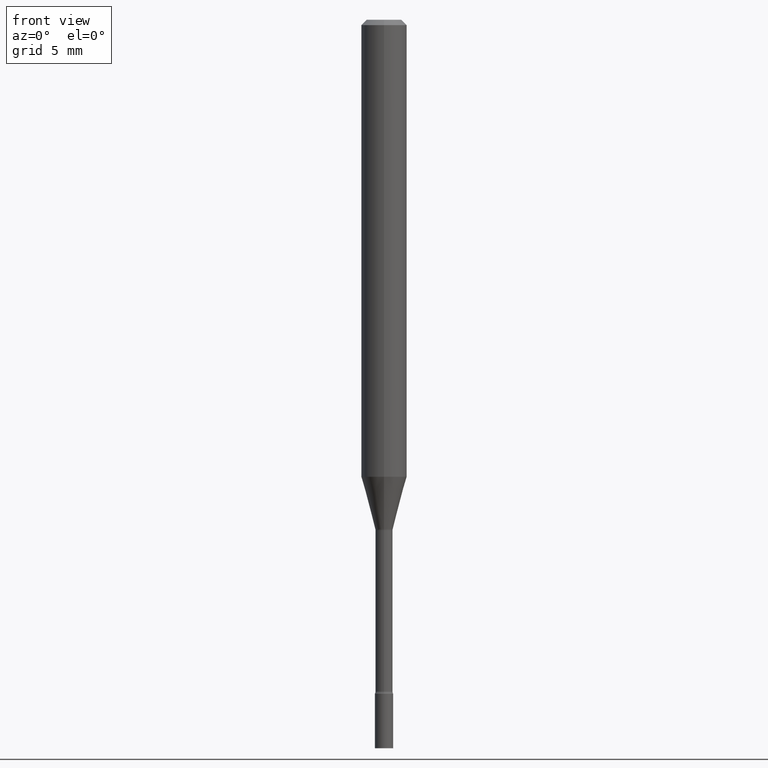
[diagram: clean part render]
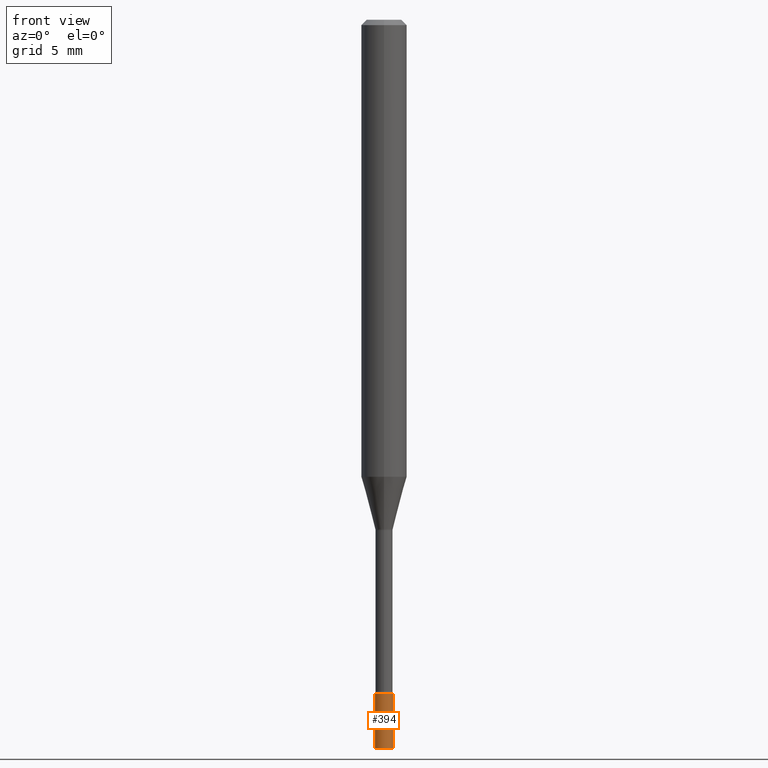
[diagram: same view with one face highlighted and labeled with its STEP entity id]
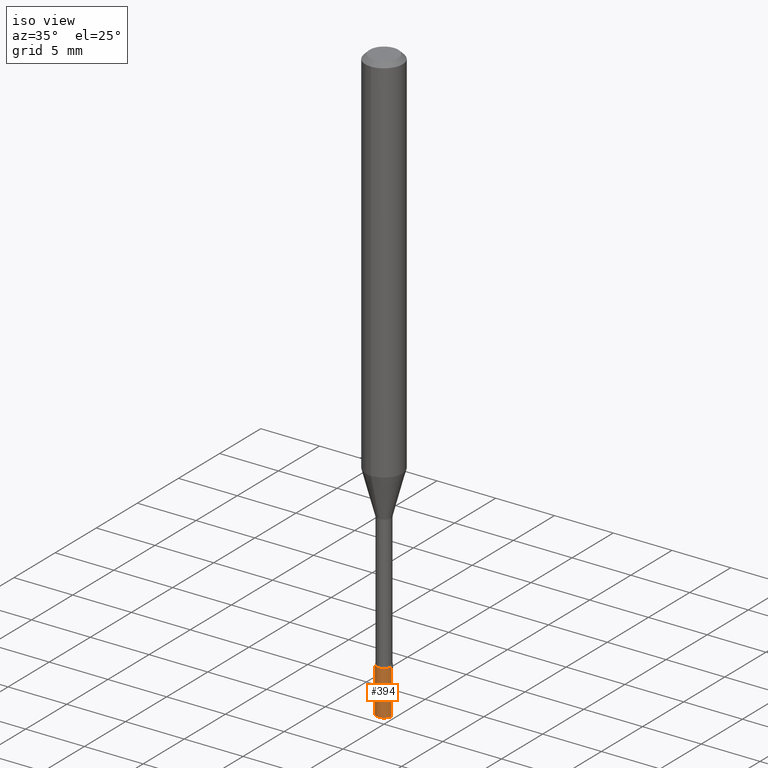
[diagram: same view with one face highlighted and labeled with its STEP entity id]
A machine part, front view. The second image highlights one B-rep face of the part: STEP entity #394.
A second angle (iso view) of the same face is appended — the face is thin or edge-on in the first view.
In plain terms, the highlighted cylindrical surface (edge-blend (fillet) strip) has radius 0.635 mm, axis along (-0, 0, 1).
Its self-contained STEP definition (entity closure, byte-faithful):
#8 = ORIENTED_EDGE ( 'NONE', *, *, #16, .F. ) ;
#9 = DIRECTION ( 'NONE',  ( -2.445468806185136597E-29, 3.491481338843145583E-15, 1.000000000000000000 ) ) ;
#14 = DIRECTION ( 'NONE',  ( 1.000000000000000000, -6.982962677686254878E-15, 0.000000000000000000 ) ) ;
#16 = EDGE_CURVE ( 'NONE', #211, #364, #414, .T. ) ;
#75 = CARTESIAN_POINT ( 'NONE',  ( 4.524117291442502256E-29, -6.459240476859818795E-15, -1.849999999999999867 ) ) ;
#89 = AXIS2_PLACEMENT_3D ( 'NONE', #75, #517, #212 ) ;
#94 = CARTESIAN_POINT ( 'NONE',  ( 0.02500000000000000139, -6.633814543801975463E-15, -1.849999999999999867 ) ) ;
#109 = CIRCLE ( 'NONE', #137, 0.02500000000000000139 ) ;
#117 = CARTESIAN_POINT ( 'NONE',  ( 0.02500000000000000139, -1.745740669421566924E-16, 1.219044193948984123E-30 ) ) ;
#125 = VECTOR ( 'NONE', #381, 39.37007874015748143 ) ;
#130 = ORIENTED_EDGE ( 'NONE', *, *, #353, .T. ) ;
#137 = AXIS2_PLACEMENT_3D ( 'NONE', #181, #371, #14 ) ;
#171 = ORIENTED_EDGE ( 'NONE', *, *, #224, .F. ) ;
#173 = DIRECTION ( 'NONE',  ( -2.445468806185136877E-29, 3.491481338843145188E-15, 1.000000000000000000 ) ) ;
#174 = VERTEX_POINT ( 'NONE', #242 ) ;
#181 = CARTESIAN_POINT ( 'NONE',  ( 4.890937612370273194E-29, -6.982962677686291165E-15, -2.000000000000000000 ) ) ;
#205 = VECTOR ( 'NONE', #173, 39.37007874015748143 ) ;
#211 = VERTEX_POINT ( 'NONE', #423 ) ;
#212 = DIRECTION ( 'NONE',  ( 1.000000000000000000, -6.982962677686254878E-15, 0.000000000000000000 ) ) ;
#224 = EDGE_CURVE ( 'NONE', #364, #439, #229, .T. ) ;
#229 = CIRCLE ( 'NONE', #89, 0.02500000000000000139 ) ;
#231 = CARTESIAN_POINT ( 'NONE',  ( -0.02500000000000000139, 1.776356839400250563E-16, -1.229733772563726656E-30 ) ) ;
#242 = CARTESIAN_POINT ( 'NONE',  ( 0.02500000000000000139, -7.157536744628447044E-15, -2.000000000000000000 ) ) ;
#254 = LINE ( 'NONE', #117, #205 ) ;
#298 = ORIENTED_EDGE ( 'NONE', *, *, #425, .T. ) ;
#305 = EDGE_LOOP ( 'NONE', ( #8, #298, #130, #171 ) ) ;
#353 = EDGE_CURVE ( 'NONE', #174, #439, #254, .T. ) ;
#364 = VERTEX_POINT ( 'NONE', #445 ) ;
#371 = DIRECTION ( 'NONE',  ( -2.445468806185136597E-29, 3.491481338843145583E-15, 1.000000000000000000 ) ) ;
#381 = DIRECTION ( 'NONE',  ( -2.445468806185136877E-29, 3.491481338843145188E-15, 1.000000000000000000 ) ) ;
#394 = ADVANCED_FACE ( 'NONE', ( #449 ), #512, .T. ) ;
#414 = LINE ( 'NONE', #231, #125 ) ;
#423 = CARTESIAN_POINT ( 'NONE',  ( -0.02500000000000000139, -6.543465893333030170E-15, -2.000000000000000000 ) ) ;
#425 = EDGE_CURVE ( 'NONE', #211, #174, #109, .T. ) ;
#436 = CARTESIAN_POINT ( 'NONE',  ( 0.000000000000000000, 0.000000000000000000, 0.000000000000000000 ) ) ;
#439 = VERTEX_POINT ( 'NONE', #94 ) ;
#445 = CARTESIAN_POINT ( 'NONE',  ( -0.02500000000000000139, -6.543465893333030170E-15, -1.849999999999999867 ) ) ;
#449 = FACE_OUTER_BOUND ( 'NONE', #305, .T. ) ;
#456 = DIRECTION ( 'NONE',  ( 1.000000000000000000, -6.982962677686267499E-15, 4.876176775795936353E-29 ) ) ;
#463 = AXIS2_PLACEMENT_3D ( 'NONE', #436, #9, #456 ) ;
#512 = CYLINDRICAL_SURFACE ( 'NONE', #463, 0.02500000000000000139 ) ;
#517 = DIRECTION ( 'NONE',  ( -2.445468806185136597E-29, 3.491481338843145583E-15, 1.000000000000000000 ) ) ;